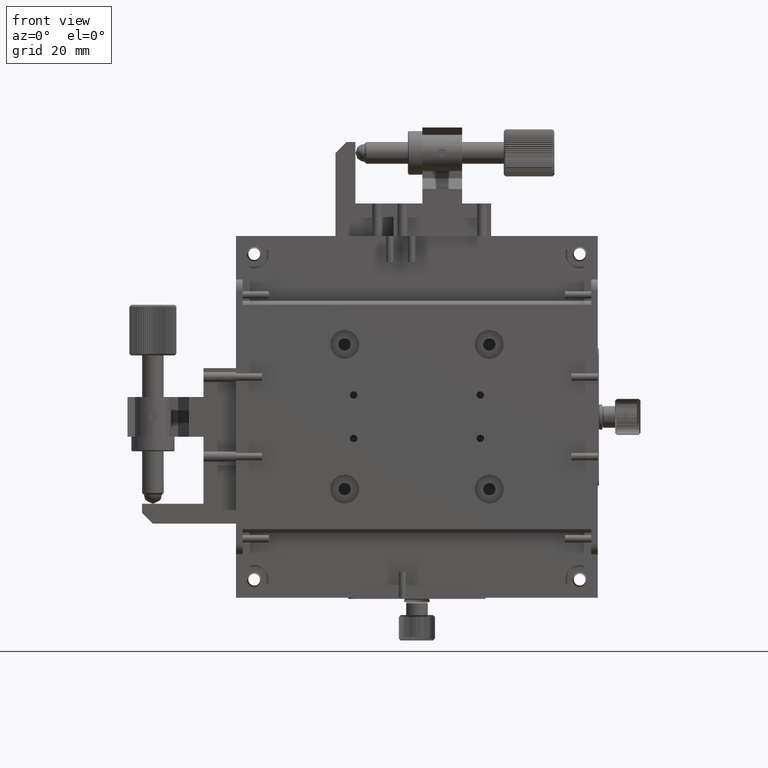
[diagram: clean part render]
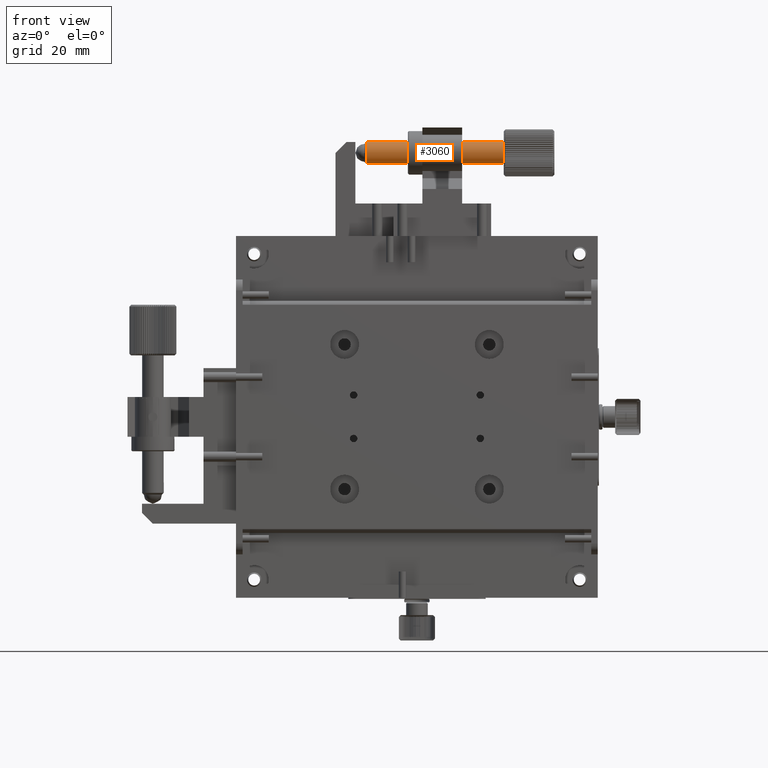
[diagram: same view with one face highlighted and labeled with its STEP entity id]
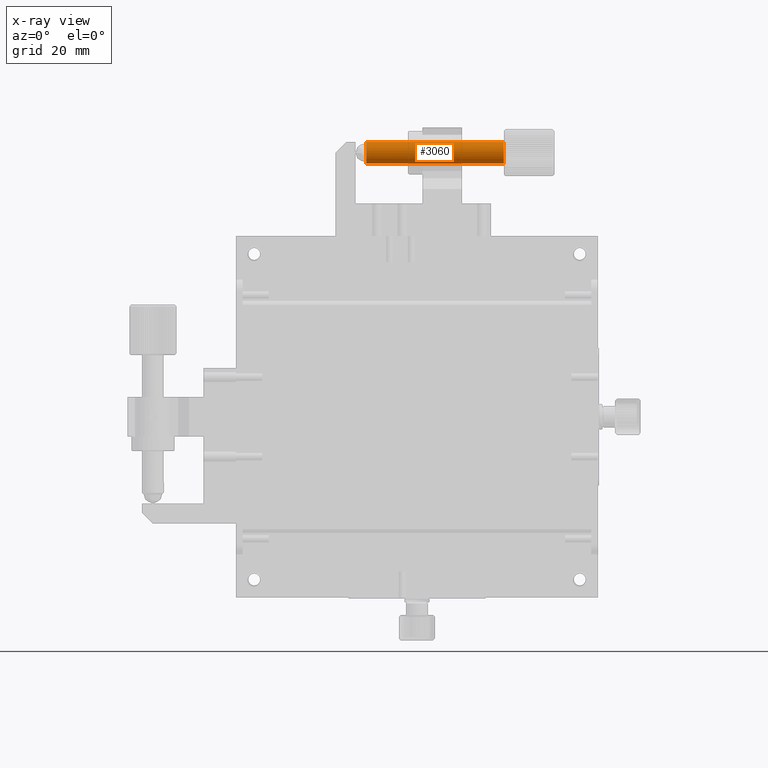
[diagram: x-ray of the same camera — body ghosted, the highlighted face saturated]
A machine part, front view. The second image highlights one B-rep face of the part: STEP entity #3060.
The next image is the same camera in x-ray: the body ghosted, the highlighted face saturated — about 0% of this face is hidden behind the body in this view.
In plain terms, the highlighted cylindrical surface (bore or boss wall) has radius 3 mm, axis along (-1, 0, 0).
Its self-contained STEP definition (entity closure, byte-faithful):
#1587 = EDGE_LOOP ( 'NONE', ( #23458 ) ) ;
#3060 = ADVANCED_FACE ( 'NONE', ( #41630, #42371 ), #22955, .T. ) ;
#3154 = AXIS2_PLACEMENT_3D ( 'NONE', #22223, #25896, #18563 ) ;
#4448 = EDGE_LOOP ( 'NONE', ( #27333 ) ) ;
#6640 = CARTESIAN_POINT ( 'NONE',  ( -18.38432492328675849, 7.461813842482115433, 76.00000000000002842 ) ) ;
#8478 = DIRECTION ( 'NONE',  ( -1.000000000000000000, 9.339046463247016284E-17, 2.289834988289385858E-16 ) ) ;
#11272 = DIRECTION ( 'NONE',  ( 0.000000000000000000, 0.000000000000000000, 1.000000000000000000 ) ) ;
#15111 = DIRECTION ( 'NONE',  ( 0.000000000000000000, 0.000000000000000000, 1.000000000000000000 ) ) ;
#18563 = DIRECTION ( 'NONE',  ( 0.000000000000000000, 0.000000000000000000, 1.000000000000000000 ) ) ;
#22077 = VERTEX_POINT ( 'NONE', #6640 ) ;
#22223 = CARTESIAN_POINT ( 'NONE',  ( -18.38432492328675849, 7.461813842482115433, 73.00000000000002842 ) ) ;
#22955 = CYLINDRICAL_SURFACE ( 'NONE', #23106, 3.000000000000002665 ) ;
#23069 = EDGE_CURVE ( 'NONE', #45462, #45462, #44952, .T. ) ;
#23106 = AXIS2_PLACEMENT_3D ( 'NONE', #37945, #8478, #15111 ) ;
#23458 = ORIENTED_EDGE ( 'NONE', *, *, #38638, .T. ) ;
#25896 = DIRECTION ( 'NONE',  ( 1.000000000000000000, -9.339046463247016284E-17, -2.289834988289385858E-16 ) ) ;
#26102 = AXIS2_PLACEMENT_3D ( 'NONE', #26467, #48597, #11272 ) ;
#26467 = CARTESIAN_POINT ( 'NONE',  ( 19.61567507671323085, 7.461813842482111880, 73.00000000000001421 ) ) ;
#27333 = ORIENTED_EDGE ( 'NONE', *, *, #23069, .T. ) ;
#33909 = CARTESIAN_POINT ( 'NONE',  ( 19.61567507671323085, 7.461813842482111880, 76.00000000000001421 ) ) ;
#37945 = CARTESIAN_POINT ( 'NONE',  ( -21.38432492328676204, 7.461813842482115433, 73.00000000000002842 ) ) ;
#38638 = EDGE_CURVE ( 'NONE', #22077, #22077, #40828, .T. ) ;
#40828 = CIRCLE ( 'NONE', #3154, 3.000000000000002665 ) ;
#41630 = FACE_OUTER_BOUND ( 'NONE', #1587, .T. ) ;
#42371 = FACE_OUTER_BOUND ( 'NONE', #4448, .T. ) ;
#44952 = CIRCLE ( 'NONE', #26102, 3.000000000000002665 ) ;
#45462 = VERTEX_POINT ( 'NONE', #33909 ) ;
#48597 = DIRECTION ( 'NONE',  ( -1.000000000000000000, 9.339046463247016284E-17, 2.289834988289385858E-16 ) ) ;